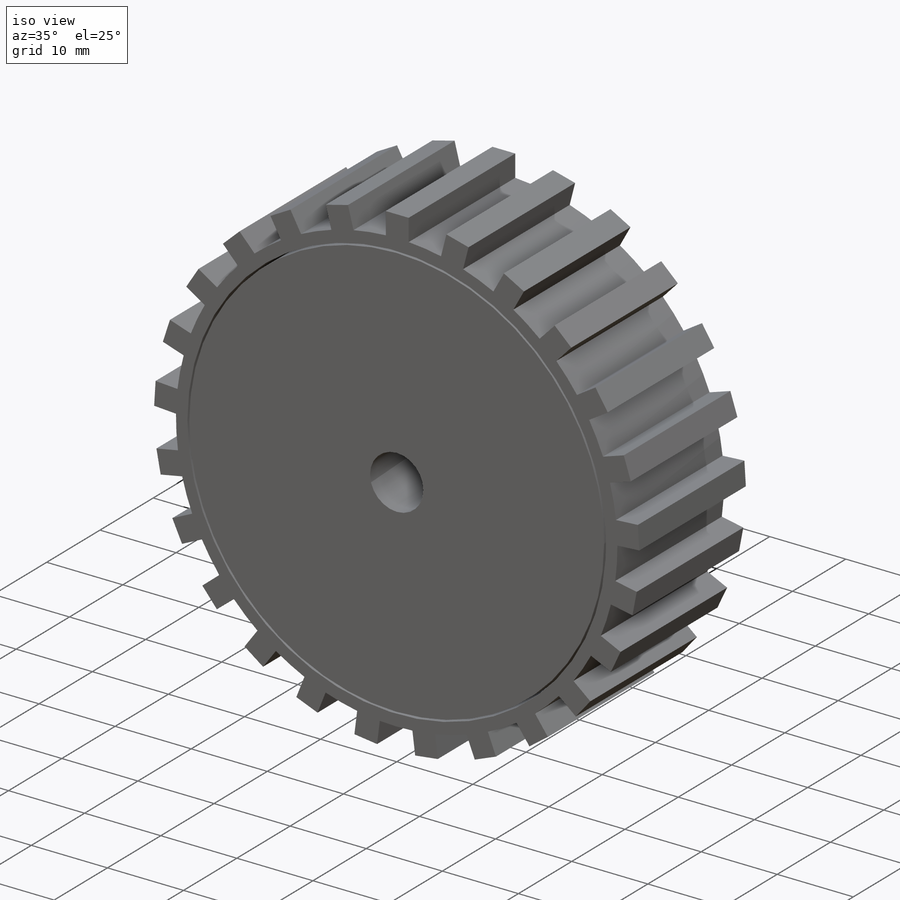
[diagram: iso view]
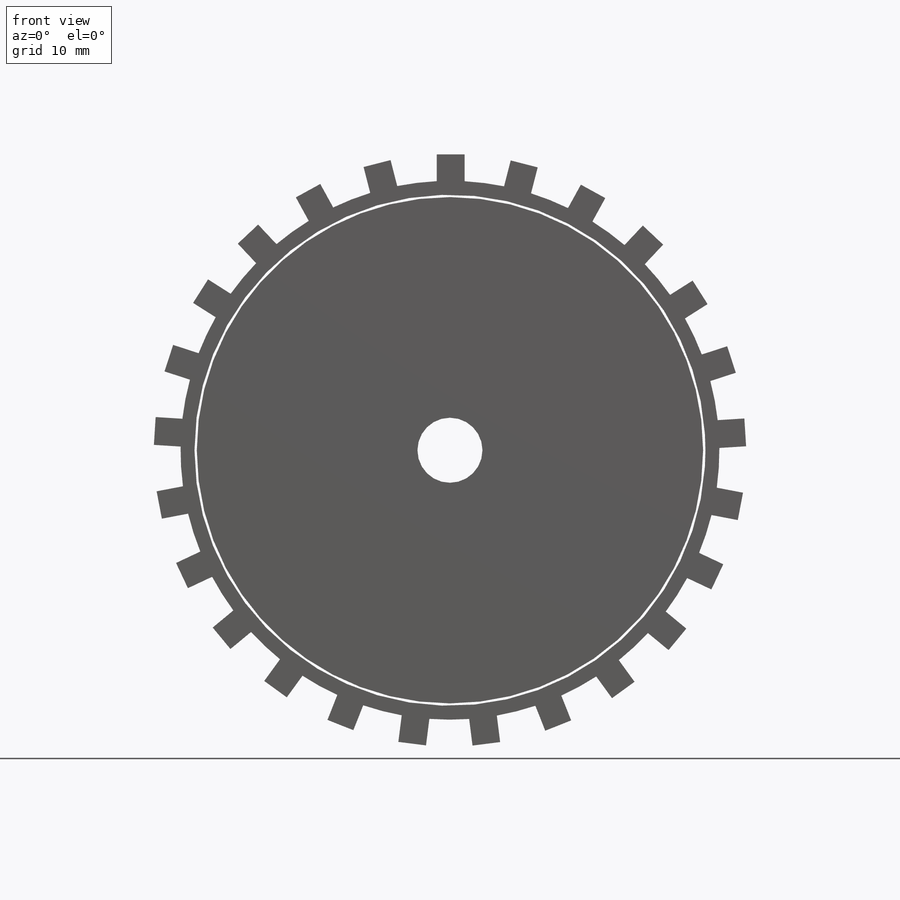
[diagram: front view]
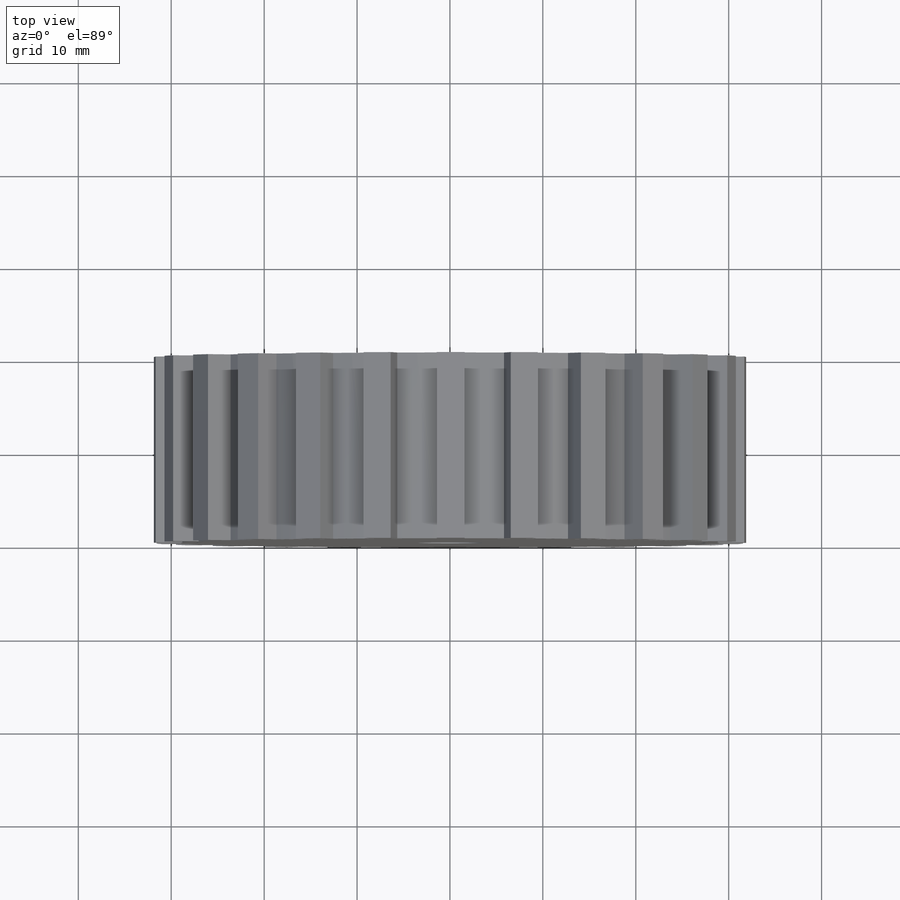
[diagram: top view]
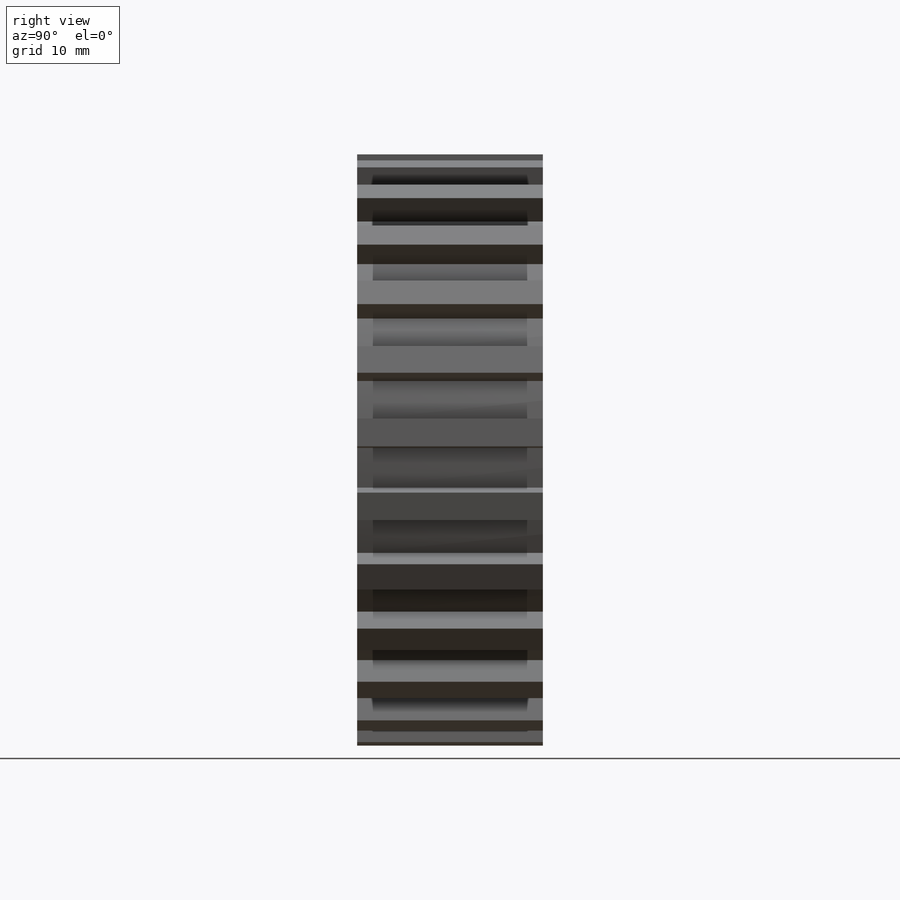
[diagram: right view]
SOLIDWORKS PART (.sldprt)
format: sldprt  version: not decoded by parser v0  size: 281,600 bytes
history: native  units: mm
features: sketch x3, extrude x2, material x1, cut_extrude x1 (+13 scaffold rows collapsed)
feature tree (20):
  scaffold x13  (default folders/planes/origin — collapsed)
  material  "Material <not specified>"
  sketch  "Sketch1"  dims[c1.D1=55.0mm c1.D2=58.0mm c1.D3=3.0mm c1.D4=~28.858614mm c2.D4=~10.972065deg c2.D2=25.0]
  extrude  "Boss-Extrude2"  Depth=20mm
  sketch  "Sketch2"  dims[D1=54.5mm]
  extrude  "Boss-Extrude5"  Depth=20mm
  sketch  "Sketch3"  dims[D1=25.0mm D2=7.0mm]
  cut_extrude  "Cut-Extrude3"  [1 undecoded]
decode coverage: 5 of 6 modeling features carry decoded parameters
note: ~ marks probable driven/reference dimensions
note: 1 parameter value undecoded
note: suppression state not decoded; provenance and decode notes live in map.json
